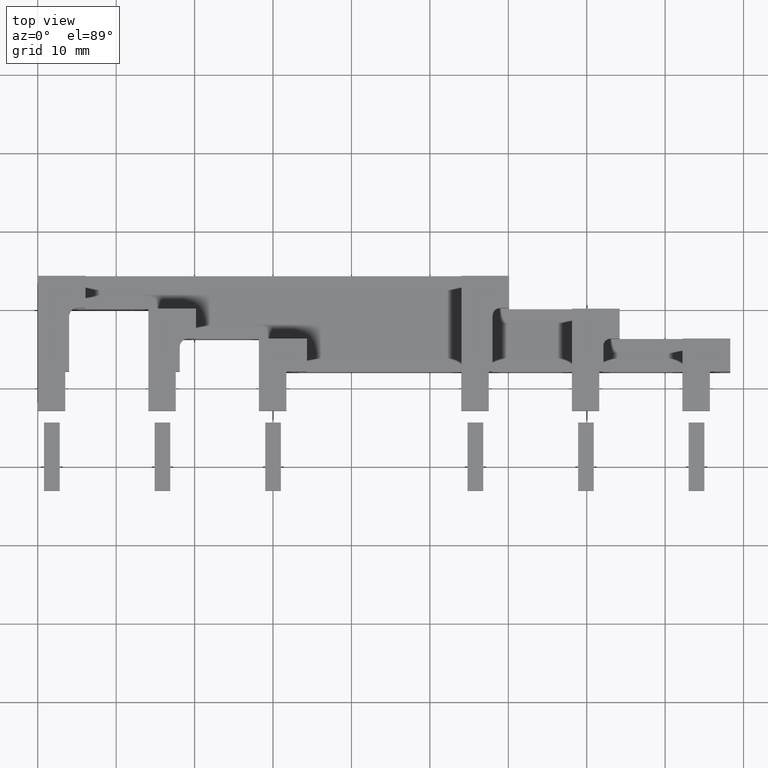
[diagram: clean part render]
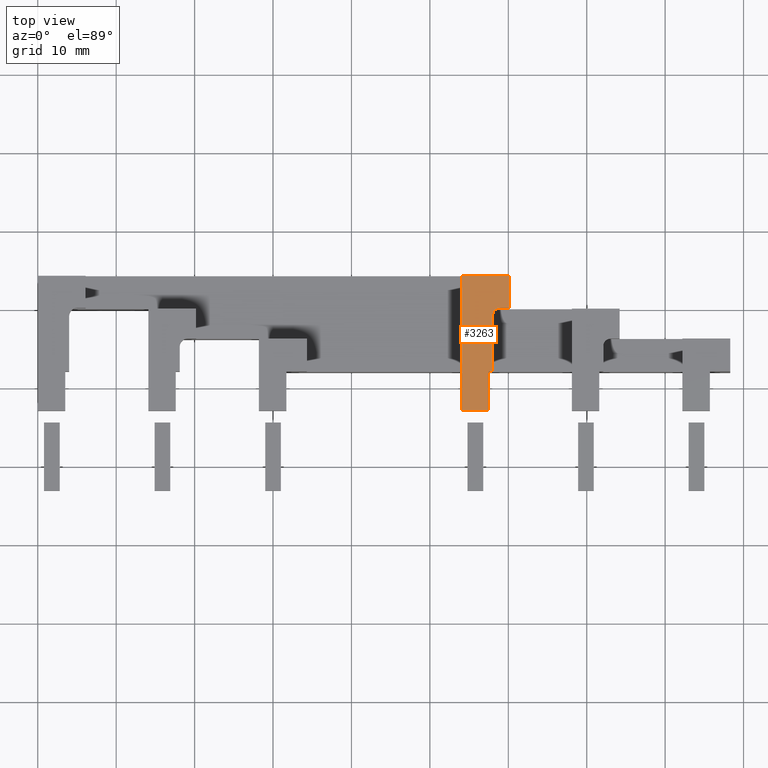
[diagram: same view with one face highlighted and labeled with its STEP entity id]
A machine part, top view. The second image highlights one B-rep face of the part: STEP entity #3263.
In plain terms, the highlighted planar face has unit normal (0, 0, 1).
Its self-contained STEP definition (entity closure, byte-faithful):
#3014=CARTESIAN_POINT('',(57.500000000000348,-7.999999999991148,108.099999999991));
#3015=VERTEX_POINT('',#3014);
#3016=CARTESIAN_POINT('',(57.500000000000789,-12.999999999990866,108.099999999991));
#3017=VERTEX_POINT('',#3016);
#3018=CARTESIAN_POINT('',(57.500000000000341,-7.999999999991149,108.099999999991));
#3019=DIRECTION('',(0.0,-1.0,0.0));
#3020=VECTOR('',#3019,4.999999999999717);
#3021=LINE('',#3018,#3020);
#3022=EDGE_CURVE('',#3015,#3017,#3021,.T.);
#3054=CARTESIAN_POINT('',(54.000000000000341,-12.999999999990708,108.0999999999911));
#3055=VERTEX_POINT('',#3054);
#3056=CARTESIAN_POINT('',(57.500000000000796,-12.999999999990862,108.09999999999103));
#3057=DIRECTION('',(-1.0,0.0,0.0));
#3058=VECTOR('',#3057,3.500000000000455);
#3059=LINE('',#3056,#3058);
#3060=EDGE_CURVE('',#3017,#3055,#3059,.T.);
#3085=CARTESIAN_POINT('',(54.000000000000213,4.200000000008886,108.09999999999108));
#3086=VERTEX_POINT('',#3085);
#3087=CARTESIAN_POINT('',(54.000000000000348,-12.99999999999071,108.09999999999108));
#3088=DIRECTION('',(0.0,1.0,0.0));
#3089=VECTOR('',#3088,17.199999999999594);
#3090=LINE('',#3087,#3089);
#3091=EDGE_CURVE('',#3055,#3086,#3090,.T.);
#3115=CARTESIAN_POINT('',(60.099999999999874,4.200000000008985,108.09999999999098));
#3116=VERTEX_POINT('',#3115);
#3117=CARTESIAN_POINT('',(54.000000000000192,4.200000000008871,108.09999999999111));
#3118=DIRECTION('',(1.0,0.0,0.0));
#3119=VECTOR('',#3118,6.099999999999682);
#3120=LINE('',#3117,#3119);
#3121=EDGE_CURVE('',#3086,#3116,#3120,.T.);
#3143=CARTESIAN_POINT('',(60.099999999999973,0.100000000000691,108.09999999999094));
#3144=VERTEX_POINT('',#3143);
#3145=CARTESIAN_POINT('',(60.099999999999874,4.200000000008999,108.09999999999094));
#3146=DIRECTION('',(0.0,-1.0,0.0));
#3147=VECTOR('',#3146,4.100000000008309);
#3148=LINE('',#3145,#3147);
#3149=EDGE_CURVE('',#3116,#3144,#3148,.T.);
#3174=CARTESIAN_POINT('',(59.000000000000171,0.100000000000691,108.09999999999098));
#3175=VERTEX_POINT('',#3174);
#3176=CARTESIAN_POINT('',(60.099999999999966,0.100000000000714,108.09999999999096));
#3177=DIRECTION('',(-1.0,0.0,0.0));
#3178=VECTOR('',#3177,1.099999999999795);
#3179=LINE('',#3176,#3178);
#3180=EDGE_CURVE('',#3144,#3175,#3179,.T.);
#3198=CARTESIAN_POINT('',(58.000000000000192,-0.899999999999338,108.099999999991));
#3199=VERTEX_POINT('',#3198);
#3200=CARTESIAN_POINT('',(59.000000000000199,-0.89999999999931,108.09999999999098));
#3201=DIRECTION('',(1.068686E-014,-1.068686E-014,1.0));
#3202=DIRECTION('',(-0.707106781186552,0.707106781186543,1.511351E-014));
#3203=AXIS2_PLACEMENT_3D('',#3200,#3201,#3202);
#3204=CIRCLE('',#3203,1.000000000000001);
#3205=EDGE_CURVE('',#3175,#3199,#3204,.T.);
#3223=CARTESIAN_POINT('',(58.000000000000341,-7.999999999990907,108.099999999991));
#3224=VERTEX_POINT('',#3223);
#3225=CARTESIAN_POINT('',(58.000000000000192,-0.899999999999324,108.099999999991));
#3226=DIRECTION('',(0.0,-1.0,0.0));
#3227=VECTOR('',#3226,7.099999999991583);
#3228=LINE('',#3225,#3227);
#3229=EDGE_CURVE('',#3199,#3224,#3228,.T.);
#3242=CARTESIAN_POINT('',(56.393187245942222,-3.793850440096009,108.09999999999101));
#3243=DIRECTION('',(0.0,0.0,1.0));
#3244=DIRECTION('',(1.0,0.0,0.0));
#3245=AXIS2_PLACEMENT_3D('',#3242,#3243,#3244);
#3246=PLANE('',#3245);
#3247=CARTESIAN_POINT('',(58.000000000000348,-7.99999999999091,108.09999999999098));
#3248=DIRECTION('',(-1.0,-4.760636E-013,2.842171E-014));
#3249=VECTOR('',#3248,0.5);
#3250=LINE('',#3247,#3249);
#3251=EDGE_CURVE('',#3224,#3015,#3250,.T.);
#3252=ORIENTED_EDGE('',*,*,#3251,.F.);
#3253=ORIENTED_EDGE('',*,*,#3229,.F.);
#3254=ORIENTED_EDGE('',*,*,#3205,.F.);
#3255=ORIENTED_EDGE('',*,*,#3180,.F.);
#3256=ORIENTED_EDGE('',*,*,#3149,.F.);
#3257=ORIENTED_EDGE('',*,*,#3121,.F.);
#3258=ORIENTED_EDGE('',*,*,#3091,.F.);
#3259=ORIENTED_EDGE('',*,*,#3060,.F.);
#3260=ORIENTED_EDGE('',*,*,#3022,.F.);
#3261=EDGE_LOOP('',(#3252,#3253,#3254,#3255,#3256,#3257,#3258,#3259,#3260));
#3262=FACE_OUTER_BOUND('',#3261,.T.);
#3263=ADVANCED_FACE('',(#3262),#3246,.T.);